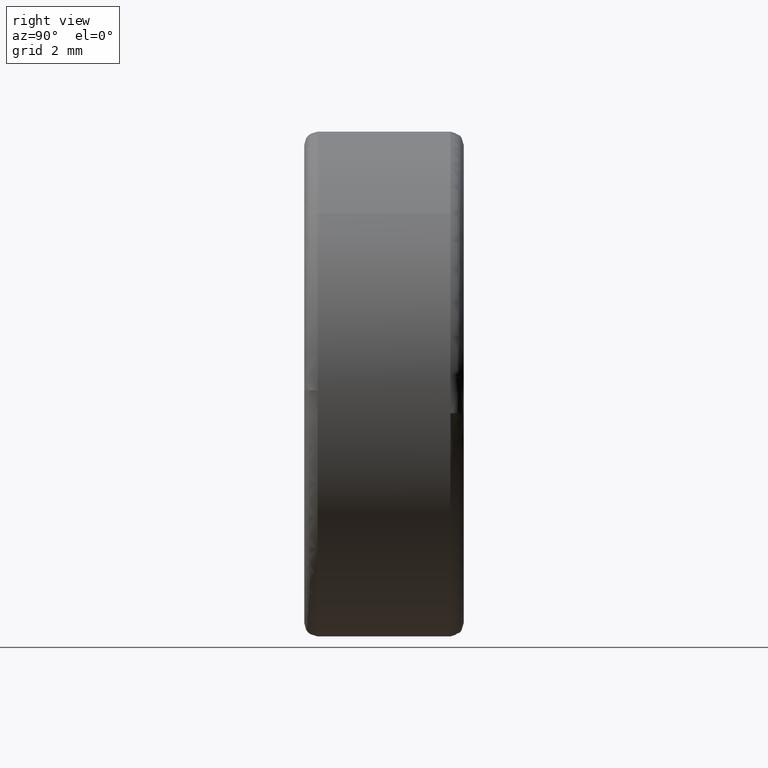
[diagram: clean part render]
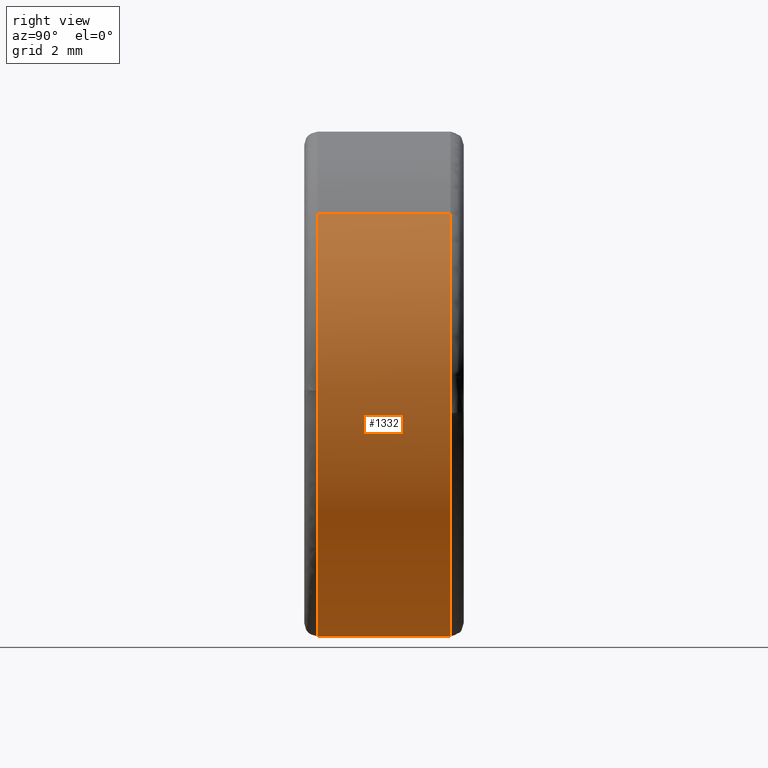
[diagram: same view with one face highlighted and labeled with its STEP entity id]
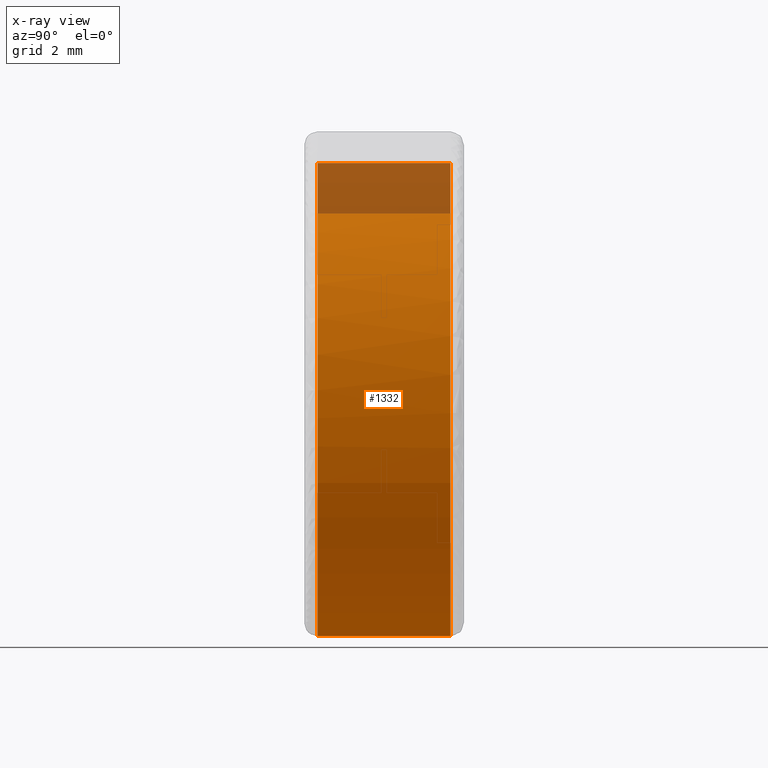
[diagram: x-ray of the same camera — body ghosted, the highlighted face saturated]
A machine part, right view. The second image highlights one B-rep face of the part: STEP entity #1332.
The next image is the same camera in x-ray: the body ghosted, the highlighted face saturated — about 11% of this face is hidden behind the body in this view.
In plain terms, the highlighted face is a freeform B-spline surface patch.
Its self-contained STEP definition (entity closure, byte-faithful):
#1164=CARTESIAN_POINT('',(-4.600087456416605,5.625000000084011,8.311991060709735));
#1165=CARTESIAN_POINT('',(-5.586718292504981,5.625000000084013,7.765962064762231));
#1166=CARTESIAN_POINT('',(-6.418106972348770,5.625000000084012,7.004134699696176));
#1167=CARTESIAN_POINT('',(-13.422241672044946,5.625000000084011,0.586027727347406));
#1168=CARTESIAN_POINT('',(-7.004134699696176,5.625000000084012,-6.418106972348770));
#1169=CARTESIAN_POINT('',(-0.586027727347406,5.625000000084011,-13.422241672044946));
#1170=CARTESIAN_POINT('',(6.418106972348770,5.625000000084012,-7.004134699696176));
#1171=CARTESIAN_POINT('',(13.422241672044946,5.625000000084011,-0.586027727347406));
#1172=CARTESIAN_POINT('',(7.004134699696176,5.625000000084012,6.418106972348770));
#1173=CARTESIAN_POINT('',(-4.600087456416605,0.371874999853670,8.311991060709735));
#1174=CARTESIAN_POINT('',(-5.586718292504981,0.371874999853670,7.765962064762231));
#1175=CARTESIAN_POINT('',(-6.418106972348770,0.371874999853670,7.004134699696176));
#1176=CARTESIAN_POINT('',(-13.422241672044946,0.371874999853670,0.586027727347406));
#1177=CARTESIAN_POINT('',(-7.004134699696176,0.371874999853670,-6.418106972348770));
#1178=CARTESIAN_POINT('',(-0.586027727347406,0.371874999853670,-13.422241672044946));
#1179=CARTESIAN_POINT('',(6.418106972348770,0.371874999853670,-7.004134699696176));
#1180=CARTESIAN_POINT('',(13.422241672044946,0.371874999853670,-0.586027727347406));
#1181=CARTESIAN_POINT('',(7.004134699696176,0.371874999853670,6.418106972348770));
#1189=(BOUNDED_SURFACE()B_SPLINE_SURFACE(2,1,((#1164,#1173),(#1165,#1174),(#1166,#1175),(#1167,#1176),(#1168,#1177),(#1169,#1178),(#1170,#1179),(#1171,#1180),(#1172,#1181)),.UNSPECIFIED.,.F.,.F.,.U.)B_SPLINE_SURFACE_WITH_KNOTS((3,2,2,2,3),(2,2),(0.0,2.518418459228419,18.258533829406030,33.998649199583639,49.738764569761251),(0.0,5.253125000230342),.UNSPECIFIED.)GEOMETRIC_REPRESENTATION_ITEM()RATIONAL_B_SPLINE_SURFACE(((0.921270302782944,0.921270302782944),(0.953137084989848,0.953137084989848),(1.0,1.0),(0.707106781186548,0.707106781186548),(1.0,1.0),(0.707106781186548,0.707106781186548),(1.0,1.0),(0.707106781186548,0.707106781186548),(1.0,1.0)))REPRESENTATION_ITEM('')SURFACE());
#1190=CARTESIAN_POINT('',(-4.600085988359925,0.499999999981940,8.311991873172854));
#1191=VERTEX_POINT('',#1190);
#1192=CARTESIAN_POINT('',(-9.496999798191341,0.499999999859289,0.238735906711980));
#1193=VERTEX_POINT('',#1192);
#1194=CARTESIAN_POINT('',(-4.600085988359925,0.499999999981940,8.311991873172854));
#1195=CARTESIAN_POINT('',(-9.360278201085677,0.499999999941924,5.677569963987287));
#1196=CARTESIAN_POINT('',(-9.496999798191341,0.499999999859289,0.238735906711980));
#1204=(BOUNDED_CURVE()B_SPLINE_CURVE(2,(#1194,#1195,#1196),.UNSPECIFIED.,.F.,.U.)B_SPLINE_CURVE_WITH_KNOTS((3,3),(0.582484261791916,0.745579891769798),.UNSPECIFIED.)CURVE()GEOMETRIC_REPRESENTATION_ITEM()RATIONAL_B_SPLINE_CURVE((0.870495159113431,0.805504439765904,0.989826157681555))REPRESENTATION_ITEM(''));
#1205=EDGE_CURVE('',#1191,#1193,#1204,.T.);
#1206=ORIENTED_EDGE('',*,*,#1205,.F.);
#1207=CARTESIAN_POINT('',(-4.600085936569775,5.500000000009822,8.311991901834954));
#1208=VERTEX_POINT('',#1207);
#1209=CARTESIAN_POINT('',(-4.600085936569775,5.500000000009822,8.311991901834954));
#1210=CARTESIAN_POINT('',(-4.600085988359925,0.499999999981940,8.311991873172854));
#1211=QUASI_UNIFORM_CURVE('',1,(#1209,#1210),.UNSPECIFIED.,.F.,.U.);
#1212=EDGE_CURVE('',#1208,#1191,#1211,.T.);
#1213=ORIENTED_EDGE('',*,*,#1212,.F.);
#1214=CARTESIAN_POINT('',(-9.499999999999996,5.500000000078531,3.107089E-015));
#1215=VERTEX_POINT('',#1214);
#1216=CARTESIAN_POINT('',(-4.600085936569776,5.500000000009822,8.311991901834954));
#1217=CARTESIAN_POINT('',(-9.499999999999970,5.500000000032238,5.600244099408878));
#1218=CARTESIAN_POINT('',(-9.499999999999996,5.500000000078531,3.107089E-015));
#1226=(BOUNDED_CURVE()B_SPLINE_CURVE(2,(#1216,#1217,#1218),.UNSPECIFIED.,.F.,.U.)B_SPLINE_CURVE_WITH_KNOTS((3,3),(0.582484260833104,0.749999999999999),.UNSPECIFIED.)CURVE()GEOMETRIC_REPRESENTATION_ITEM()RATIONAL_B_SPLINE_CURVE((0.870495159877570,0.803743103813973,0.999999999999998))REPRESENTATION_ITEM(''));
#1227=EDGE_CURVE('',#1208,#1215,#1226,.T.);
#1228=ORIENTED_EDGE('',*,*,#1227,.T.);
#1229=CARTESIAN_POINT('',(0.0,5.500000000000000,-9.500000000000000));
#1230=VERTEX_POINT('',#1229);
#1231=CARTESIAN_POINT('',(-9.500000000000000,5.500000000078534,3.107089E-015));
#1232=CARTESIAN_POINT('',(-9.500000000000005,5.500000000000000,-9.499999999999998));
#1233=CARTESIAN_POINT('',(0.0,5.500000000000000,-9.500000000000000));
#1241=(BOUNDED_CURVE()B_SPLINE_CURVE(2,(#1231,#1232,#1233),.UNSPECIFIED.,.F.,.U.)B_SPLINE_CURVE_WITH_KNOTS((3,3),(0.750000000000000,1.0),.UNSPECIFIED.)CURVE()GEOMETRIC_REPRESENTATION_ITEM()RATIONAL_B_SPLINE_CURVE((1.0,0.707106781186547,1.0))REPRESENTATION_ITEM(''));
#1242=EDGE_CURVE('',#1215,#1230,#1241,.T.);
#1243=ORIENTED_EDGE('',*,*,#1242,.T.);
#1244=CARTESIAN_POINT('',(9.436460568457928,5.500000000077355,-1.096910178610184));
#1245=VERTEX_POINT('',#1244);
#1246=CARTESIAN_POINT('',(0.0,5.500000000000000,-9.500000000000000));
#1247=CARTESIAN_POINT('',(8.459671157850583,5.500000000000000,-9.499999999999998));
#1248=CARTESIAN_POINT('',(9.436460568457928,5.500000000077355,-1.096910178610185));
#1256=(BOUNDED_CURVE()B_SPLINE_CURVE(2,(#1246,#1247,#1248),.UNSPECIFIED.,.F.,.U.)B_SPLINE_CURVE_WITH_KNOTS((3,3),(0.0,0.229999999999893),.UNSPECIFIED.)CURVE()GEOMETRIC_REPRESENTATION_ITEM()RATIONAL_B_SPLINE_CURVE((1.0,0.730538238691749,0.956886118190449))REPRESENTATION_ITEM(''));
#1257=EDGE_CURVE('',#1230,#1245,#1256,.T.);
#1258=ORIENTED_EDGE('',*,*,#1257,.T.);
#1259=CARTESIAN_POINT('',(7.004135044492157,5.500000000000000,6.418106596069947));
#1260=VERTEX_POINT('',#1259);
#1261=CARTESIAN_POINT('',(9.436460568457928,5.500000000077355,-1.096910178610185));
#1262=CARTESIAN_POINT('',(9.500000000000000,5.500000000000000,-0.550295376432844));
#1263=CARTESIAN_POINT('',(9.500000000000000,5.500000000000000,-1.501658E-016));
#1264=CARTESIAN_POINT('',(9.500000000000000,5.500000000000001,3.694347365060328));
#1265=CARTESIAN_POINT('',(7.004135044492157,5.500000000000000,6.418106596069947));
#1273=(BOUNDED_CURVE()B_SPLINE_CURVE(2,(#1261,#1262,#1263,#1264,#1265),.UNSPECIFIED.,.F.,.U.)B_SPLINE_CURVE_WITH_KNOTS((3,2,3),(0.229999999999893,0.250000000000000,0.368415192864189),.UNSPECIFIED.)CURVE()GEOMETRIC_REPRESENTATION_ITEM()RATIONAL_B_SPLINE_CURVE((0.956886118190449,0.976568542494799,1.0,0.861267972022367,0.853959782840026))REPRESENTATION_ITEM(''));
#1274=EDGE_CURVE('',#1245,#1260,#1273,.T.);
#1275=ORIENTED_EDGE('',*,*,#1274,.T.);
#1276=CARTESIAN_POINT('',(7.004135048799357,0.500000000000003,6.418106591369461));
#1277=VERTEX_POINT('',#1276);
#1278=CARTESIAN_POINT('',(7.004135044492157,5.500000000000000,6.418106596069947));
#1279=CARTESIAN_POINT('',(7.004135048799357,0.500000000000003,6.418106591369461));
#1280=QUASI_UNIFORM_CURVE('',1,(#1278,#1279),.UNSPECIFIED.,.F.,.U.);
#1281=EDGE_CURVE('',#1260,#1277,#1280,.T.);
#1282=ORIENTED_EDGE('',*,*,#1281,.T.);
#1283=CARTESIAN_POINT('',(9.496999798191341,0.499999999859289,-0.238735906711978));
#1284=VERTEX_POINT('',#1283);
#1285=CARTESIAN_POINT('',(9.496999798191341,0.499999999859289,-0.238735906711978));
#1286=CARTESIAN_POINT('',(9.500000000000000,0.500000000000000,-0.119386805172379));
#1287=CARTESIAN_POINT('',(9.500000000000000,0.500000000000000,-1.501658E-016));
#1288=CARTESIAN_POINT('',(9.499999999999998,0.500000000000000,3.694347357720723));
#1289=CARTESIAN_POINT('',(7.004135048799357,0.500000000000003,6.418106591369461));
#1297=(BOUNDED_CURVE()B_SPLINE_CURVE(2,(#1285,#1286,#1287,#1288,#1289),.UNSPECIFIED.,.F.,.U.)B_SPLINE_CURVE_WITH_KNOTS((3,2,3),(0.245579891769798,0.250000000000000,0.368415192661570),.UNSPECIFIED.)CURVE()GEOMETRIC_REPRESENTATION_ITEM()RATIONAL_B_SPLINE_CURVE((0.989826157681553,0.994821521091809,1.0,0.861267972259750,0.853959782865036))REPRESENTATION_ITEM(''));
#1298=EDGE_CURVE('',#1284,#1277,#1297,.T.);
#1299=ORIENTED_EDGE('',*,*,#1298,.F.);
#1300=CARTESIAN_POINT('',(0.0,0.500000000000000,-9.500000000000000));
#1301=VERTEX_POINT('',#1300);
#1302=CARTESIAN_POINT('',(0.0,0.500000000000000,-9.500000000000000));
#1303=CARTESIAN_POINT('',(9.264189823715638,0.500000000000000,-9.499999999999998));
#1304=CARTESIAN_POINT('',(9.496999798191341,0.499999999859289,-0.238735906711978));
#1312=(BOUNDED_CURVE()B_SPLINE_CURVE(2,(#1302,#1303,#1304),.UNSPECIFIED.,.F.,.U.)B_SPLINE_CURVE_WITH_KNOTS((3,3),(0.0,0.245579891769798),.UNSPECIFIED.)CURVE()GEOMETRIC_REPRESENTATION_ITEM()RATIONAL_B_SPLINE_CURVE((1.0,0.712285260094739,0.989826157681554))REPRESENTATION_ITEM(''));
#1313=EDGE_CURVE('',#1301,#1284,#1312,.T.);
#1314=ORIENTED_EDGE('',*,*,#1313,.F.);
#1315=CARTESIAN_POINT('',(-9.496999798191341,0.499999999859289,0.238735906711980));
#1316=CARTESIAN_POINT('',(-9.500000000000000,0.500000000000000,0.119386805172380));
#1317=CARTESIAN_POINT('',(-9.500000000000000,0.500000000000000,-1.501658E-016));
#1318=CARTESIAN_POINT('',(-9.500000000000000,0.500000000000000,-9.500000000000000));
#1319=CARTESIAN_POINT('',(0.0,0.500000000000000,-9.500000000000000));
#1327=(BOUNDED_CURVE()B_SPLINE_CURVE(2,(#1315,#1316,#1317,#1318,#1319),.UNSPECIFIED.,.F.,.U.)B_SPLINE_CURVE_WITH_KNOTS((3,2,3),(0.745579891769797,0.750000000000000,1.0),.UNSPECIFIED.)CURVE()GEOMETRIC_REPRESENTATION_ITEM()RATIONAL_B_SPLINE_CURVE((0.989826157681553,0.994821521091809,1.0,0.707106781186548,1.0))REPRESENTATION_ITEM(''));
#1328=EDGE_CURVE('',#1193,#1301,#1327,.T.);
#1329=ORIENTED_EDGE('',*,*,#1328,.F.);
#1330=EDGE_LOOP('',(#1206,#1213,#1228,#1243,#1258,#1275,#1282,#1299,#1314,#1329));
#1331=FACE_OUTER_BOUND('',#1330,.T.);
#1332=ADVANCED_FACE('',(#1331),#1189,.T.);